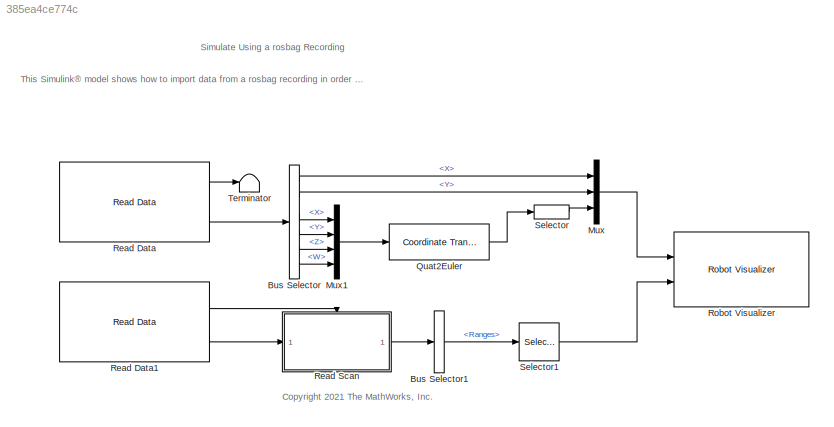
MODEL slx_385ea4ce774c
KIND model
CONFIG AbsTol = auto
CONFIG EnableMultiTasking = off
CONFIG FixedStep = auto
CONFIG MaxStep = auto
CONFIG MinStep = auto
CONFIG PreLoadFcn = load('turtleBotMazeMap.mat');\nang=0:pi/180:2*pi;\nsubsetang=ang(1:4:360);
CONFIG RelTol = 1e-3
CONFIG SampleTimeConstraint = Unconstrained
CONFIG SolverName = FixedStepAuto
CONFIG StartTime = 0.0
CONFIG StopTime = 80
WORKSPACE source: mxarray member
WORKSPACE Logfile_Data_Object: robotics.ros.BagSelection (value not decoded)
WORKSPACE Logfile_Path = '<userpath>\\OneDrive - MathWorks<path>'
WORKSPACE Logfile_Playback_Duration = 80
WORKSPACE Logfile_Playback_Offset = 0
WORKSPACE SL_ROS_VariableLengthArrays_MaxSizes: object (value not decoded)
BLOCK [BusSelector] Bus Selector
  OutputSignals = Pose.Pose.Position.X,Pose.Pose.Position.Y,Pose.Pose.Orientation.X,Pose.Pose.Orientation.Y,Pose.Pose.Orientation.Z,Pose.Pose.Orientation.W
  Ports = [1, 6]
BLOCK [BusSelector] Bus Selector1
  OutputSignals = Ranges
  Ports = [1, 1]
BLOCK [Mux] Mux
  DisplayOption = bar
  Inputs = 3
  Ports = [3, 1]
BLOCK [Mux] Mux1
  DisplayOption = bar
  Ports = [4, 1]
BLOCK [Reference] Quat2Euler  REF=robotcorelib/Coordinate Transformation Conversion
  Ports = [1, 1]
  SourceBlock = robotcorelib/Coordinate Transformation Conversion
  SourceProductBaseCode = NV,RO,RR,UV
  SourceType = robotics.slcore.internal.block.CoordinateTransformationConversion
BLOCK [Reference] Read Data  REF=robotlib/Read Data
  Ports = [0, 2]
  SourceBlock = robotlib/Read Data
  SourceProductBaseCode = RR
  SourceType = Read Data from Logfile
BLOCK [Reference] Read Data1  REF=robotlib/Read Data
  Ports = [0, 2]
  SourceBlock = robotlib/Read Data
  SourceProductBaseCode = RR
  SourceType = Read Data from Logfile
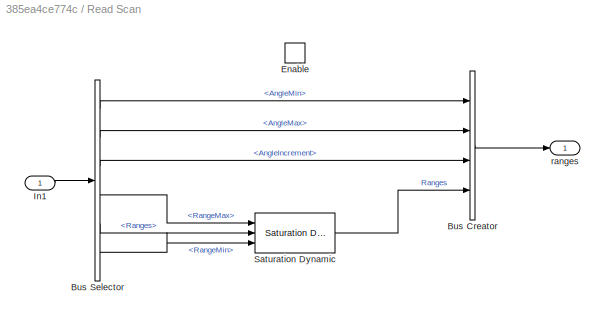
BLOCK [SubSystem] Read Scan
  Ports = [1, 1, 1]
  RequestExecContextInheritance = off
BLOCK [BusCreator] Read Scan/Bus Creator
  DisplayOption = bar
  InheritFromInputs = on
  Inputs = 4
  Ports = [4, 1]
BLOCK [BusSelector] Read Scan/Bus Selector
  OutputSignals = AngleMin,AngleMax,AngleIncrement,RangeMax,Ranges,RangeMin
  Ports = [1, 6]
BLOCK [EnablePort] Read Scan/Enable
  Ports = []
BLOCK [Inport] Read Scan/In1
BLOCK [Reference] Read Scan/Saturation Dynamic  REF=simulink/Discontinuities/Saturation
Dynamic
  Ports = [3, 1]
  SourceBlock = simulink/Discontinuities/Saturation\nDynamic
  SourceProductBaseCode = SL
  SourceType = Saturation Dynamic
BLOCK [Outport] Read Scan/ranges
BLOCK [Reference] Robot Visualizer  REF=mobileRoboticsLib/Environments/Robot Visualizer
  Ports = [2]
  SourceBlock = mobileRoboticsLib/Environments/Robot Visualizer
  SourceProductName = Mobile Robotics Simulation Toolbox
  SourceType = Visualizer2D
BLOCK [Selector] Selector
  IndexOptions = Index vector (dialog)
  Indices = 3
  InputPortWidth = 3
  OutputSizes = 1
  Ports = [1, 1]
BLOCK [Selector] Selector1
  IndexOptions = Index vector (dialog)
  Indices = 1:4:360
  InputPortWidth = 361
  OutputSizes = 1
  Ports = [1, 1]
BLOCK [Terminator] Terminator
ANNOTATION (root): This Simulink® model shows how to import data from a rosbag recording in order to visualize the data and develop algorithms using simulations. This model reuires the Mobile Robotics Simulation Toolbox MATLAB® Add-on . For more information on using ROS Log Files in Simulink visit this documentation page .
ANNOTATION (root): Simulate Using a rosbag Recording
ANNOTATION (root): <copyright redacted>
LINE Bus Selector1:1 -> Selector1:1
LINE Bus Selector:1 -> Mux:1
LINE Bus Selector:2 -> Mux:2
LINE Bus Selector:3 -> Mux1:1
LINE Bus Selector:4 -> Mux1:2
LINE Bus Selector:5 -> Mux1:3
LINE Bus Selector:6 -> Mux1:4
LINE Mux1:1 -> Quat2Euler:1
LINE Mux:1 -> Robot Visualizer:1
LINE Quat2Euler:1 -> Selector:1
LINE Read Data1:1 -> Read Scan:enable
LINE Read Data1:2 -> Read Scan:1
LINE Read Data:1 -> Terminator:1
LINE Read Data:2 -> Bus Selector:1
LINE Read Scan/Bus Creator:1 -> Read Scan/ranges:1
LINE Read Scan/Bus Selector:1 -> Read Scan/Bus Creator:1
LINE Read Scan/Bus Selector:2 -> Read Scan/Bus Creator:2
LINE Read Scan/Bus Selector:3 -> Read Scan/Bus Creator:3
LINE Read Scan/Bus Selector:4 -> Read Scan/Saturation Dynamic:1
LINE Read Scan/Bus Selector:5 -> Read Scan/Saturation Dynamic:2
LINE Read Scan/Bus Selector:6 -> Read Scan/Saturation Dynamic:3
LINE Read Scan/In1:1 -> Read Scan/Bus Selector:1
LINE Read Scan/Saturation Dynamic:1 -> Read Scan/Bus Creator:4
LINE Read Scan:1 -> Bus Selector1:1
LINE Selector1:1 -> Robot Visualizer:2
LINE Selector:1 -> Mux:3
